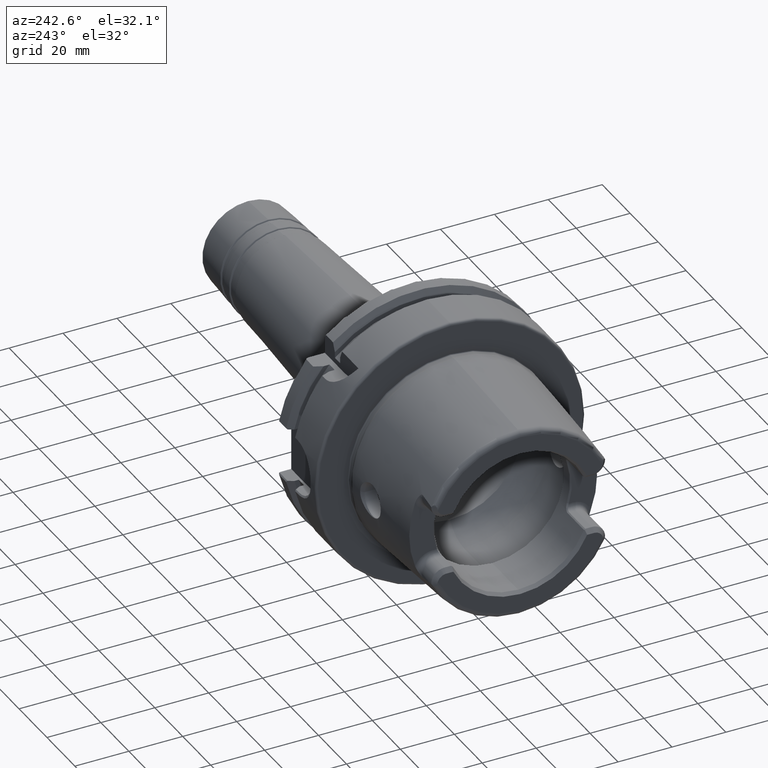
[diagram: clean part render]
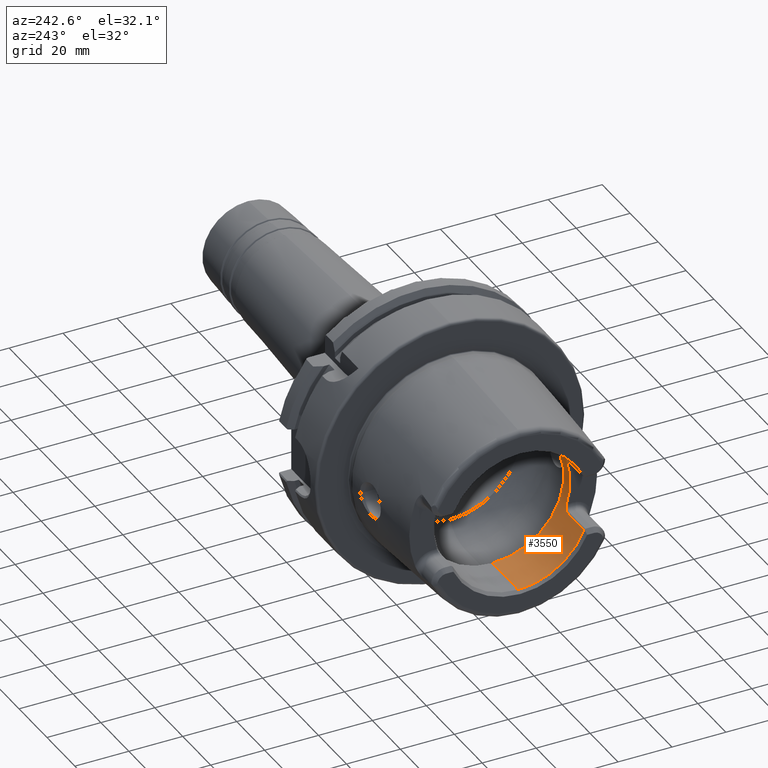
[diagram: same view with one face highlighted and labeled with its STEP entity id]
A machine part, auxiliary view. The second image highlights one B-rep face of the part: STEP entity #3550.
In plain terms, the highlighted cylindrical surface (partial cylindrical patch) has radius 26.5 mm, axis along (1, 0, 0).
Its self-contained STEP definition (entity closure, byte-faithful):
#303=CARTESIAN_POINT('',(-4.85E1,0.E0,0.E0));
#304=DIRECTION('',(1.E0,0.E0,0.E0));
#305=DIRECTION('',(0.E0,-9.211282370446E-1,-3.892592592593E-1));
#306=AXIS2_PLACEMENT_3D('',#303,#304,#305);
#308=DIRECTION('',(-1.E0,-5.551588003877E-9,2.922803554237E-11));
#309=VECTOR('',#308,1.849662432609E1);
#310=CARTESIAN_POINT('',(-3.000337567297E1,0.E0,-2.65E1));
#311=LINE('',#310,#309);
#312=CARTESIAN_POINT('',(-3.000337567297E1,0.E0,0.E0));
#313=DIRECTION('',(1.E0,0.E0,0.E0));
#314=DIRECTION('',(0.E0,0.E0,1.E0));
#315=AXIS2_PLACEMENT_3D('',#312,#313,#314);
#317=DIRECTION('',(-1.E0,5.551587782253E-9,-2.922592273250E-11));
#318=VECTOR('',#317,1.849662432609E1);
#319=CARTESIAN_POINT('',(-3.000337567297E1,0.E0,2.65E1));
#320=LINE('',#319,#318);
#321=CARTESIAN_POINT('',(-4.85E1,0.E0,0.E0));
#322=DIRECTION('',(1.E0,0.E0,0.E0));
#323=DIRECTION('',(0.E0,0.E0,1.E0));
#324=AXIS2_PLACEMENT_3D('',#321,#322,#323);
#326=DIRECTION('',(-1.E0,3.226296547915E-11,5.697579647310E-11));
#327=VECTOR('',#326,1.149999991698E1);
#328=CARTESIAN_POINT('',(-3.700000008300E1,-2.440989828204E1,1.031537036972E1));
#329=LINE('',#328,#327);
#330=CARTESIAN_POINT('',(-3.449999998651E1,-2.530699846500E1,7.861668321341E0));
#331=CARTESIAN_POINT('',(-3.449795011958E1,-2.523759929115E1,8.085066857051E0));
#332=CARTESIAN_POINT('',(-3.456021542581E1,-2.509785564659E1,8.514631971724E0));
#333=CARTESIAN_POINT('',(-3.482630285811E1,-2.487849543461E1,9.134382792455E0));
#334=CARTESIAN_POINT('',(-3.524644241061E1,-2.468204294199E1,9.650097295362E0));
#335=CARTESIAN_POINT('',(-3.577785285832E1,-2.452731871794E1,1.003478934780E1));
#336=CARTESIAN_POINT('',(-3.638766783458E1,-2.443056876952E1,1.026668682524E1));
#337=CARTESIAN_POINT('',(-3.679311128597E1,-2.440929933694E1,1.031678769054E1));
#338=CARTESIAN_POINT('',(-3.700000008300E1,-2.440989828204E1,1.031537036972E1));
#340=CARTESIAN_POINT('',(-3.45E1,0.E0,0.E0));
#341=DIRECTION('',(-1.E0,0.E0,0.E0));
#342=DIRECTION('',(0.E0,-9.549810934720E-1,-2.966666666667E-1));
#343=AXIS2_PLACEMENT_3D('',#340,#341,#342);
#345=CARTESIAN_POINT('',(-3.700000016220E1,-2.440989828213E1,
-1.031537036967E1));
#346=CARTESIAN_POINT('',(-3.678858779585E1,-2.440959239456E1,
-1.031609421035E1));
#347=CARTESIAN_POINT('',(-3.637701059267E1,-2.443150404043E1,
-1.026447856370E1));
#348=CARTESIAN_POINT('',(-3.577240070331E1,-2.452879080341E1,
-1.003118157757E1));
#349=CARTESIAN_POINT('',(-3.524355850821E1,-2.468306308929E1,
-9.647504754595E0));
#350=CARTESIAN_POINT('',(-3.482283577083E1,-2.488050256782E1,
-9.128971951032E0));
#351=CARTESIAN_POINT('',(-3.455897743123E1,-2.509969767947E1,
-8.509135686152E0));
#352=CARTESIAN_POINT('',(-3.449793394971E1,-2.523831739929E1,
-8.082755236989E0));
#353=CARTESIAN_POINT('',(-3.449999999063E1,-2.530699864113E1,
-7.861667751238E0));
#355=DIRECTION('',(1.E0,-3.969833213848E-11,6.107856335907E-11));
#356=VECTOR('',#355,1.149999983779E1);
#357=CARTESIAN_POINT('',(-4.85E1,-2.440989828168E1,-1.031537037037E1));
#358=LINE('',#357,#356);
#2792=CARTESIAN_POINT('',(-3.000337567297E1,0.E0,-2.65E1));
#2793=CARTESIAN_POINT('',(-3.000337567297E1,0.E0,2.65E1));
#2794=VERTEX_POINT('',#2792);
#2795=VERTEX_POINT('',#2793);
#2983=VERTEX_POINT('',#330);
#2984=VERTEX_POINT('',#338);
#2987=CARTESIAN_POINT('',(-3.45E1,-2.530699897701E1,-7.861666666667E0));
#2988=VERTEX_POINT('',#2987);
#2991=VERTEX_POINT('',#345);
#2993=CARTESIAN_POINT('',(-4.85E1,0.E0,-2.65E1));
#2995=VERTEX_POINT('',#2993);
#2997=CARTESIAN_POINT('',(-4.85E1,-2.440989828168E1,-1.031537037037E1));
#2998=VERTEX_POINT('',#2997);
#2999=CARTESIAN_POINT('',(-4.85E1,0.E0,2.65E1));
#3000=CARTESIAN_POINT('',(-4.85E1,-2.440989828168E1,1.031537037037E1));
#3001=VERTEX_POINT('',#2999);
#3002=VERTEX_POINT('',#3000);
#3525=CARTESIAN_POINT('',(0.E0,0.E0,0.E0));
#3526=DIRECTION('',(1.E0,0.E0,0.E0));
#3527=DIRECTION('',(0.E0,0.E0,1.E0));
#3528=AXIS2_PLACEMENT_3D('',#3525,#3526,#3527);
#3529=CYLINDRICAL_SURFACE('',#3528,2.65E1);
#3531=ORIENTED_EDGE('',*,*,#3530,.T.);
#3532=ORIENTED_EDGE('',*,*,#3506,.F.);
#3534=ORIENTED_EDGE('',*,*,#3533,.F.);
#3535=ORIENTED_EDGE('',*,*,#3502,.T.);
#3537=ORIENTED_EDGE('',*,*,#3536,.T.);
#3539=ORIENTED_EDGE('',*,*,#3538,.F.);
#3541=ORIENTED_EDGE('',*,*,#3540,.F.);
#3543=ORIENTED_EDGE('',*,*,#3542,.F.);
#3545=ORIENTED_EDGE('',*,*,#3544,.F.);
#3547=ORIENTED_EDGE('',*,*,#3546,.F.);
#3548=EDGE_LOOP('',(#3531,#3532,#3534,#3535,#3537,#3539,#3541,#3543,#3545,
#3547));
#3549=FACE_OUTER_BOUND('',#3548,.F.);
#3550=ADVANCED_FACE('',(#3549),#3529,.F.);
#307=CIRCLE('',#306,2.65E1);
#316=CIRCLE('',#315,2.65E1);
#325=CIRCLE('',#324,2.65E1);
#339=B_SPLINE_CURVE_WITH_KNOTS('',3,(#330,#331,#332,#333,#334,#335,#336,#337,
#338),.UNSPECIFIED.,.F.,.F.,(4,1,1,1,1,1,4),(0.E0,1.666666666667E-1,
3.333333333333E-1,5.E-1,6.666666666667E-1,8.333333333333E-1,1.E0),
.UNSPECIFIED.);
#344=CIRCLE('',#343,2.65E1);
#354=B_SPLINE_CURVE_WITH_KNOTS('',3,(#345,#346,#347,#348,#349,#350,#351,#352,
#353),.UNSPECIFIED.,.F.,.F.,(4,1,1,1,1,1,4),(0.E0,1.666666666667E-1,
3.333333333333E-1,5.E-1,6.666666666667E-1,8.333333333333E-1,1.E0),
.UNSPECIFIED.);
#3502=EDGE_CURVE('',#2795,#3001,#320,.T.);
#3506=EDGE_CURVE('',#2794,#2995,#311,.T.);
#3530=EDGE_CURVE('',#2998,#2995,#307,.T.);
#3533=EDGE_CURVE('',#2795,#2794,#316,.T.);
#3536=EDGE_CURVE('',#3001,#3002,#325,.T.);
#3538=EDGE_CURVE('',#2984,#3002,#329,.T.);
#3540=EDGE_CURVE('',#2983,#2984,#339,.T.);
#3542=EDGE_CURVE('',#2988,#2983,#344,.T.);
#3544=EDGE_CURVE('',#2991,#2988,#354,.T.);
#3546=EDGE_CURVE('',#2998,#2991,#358,.T.);